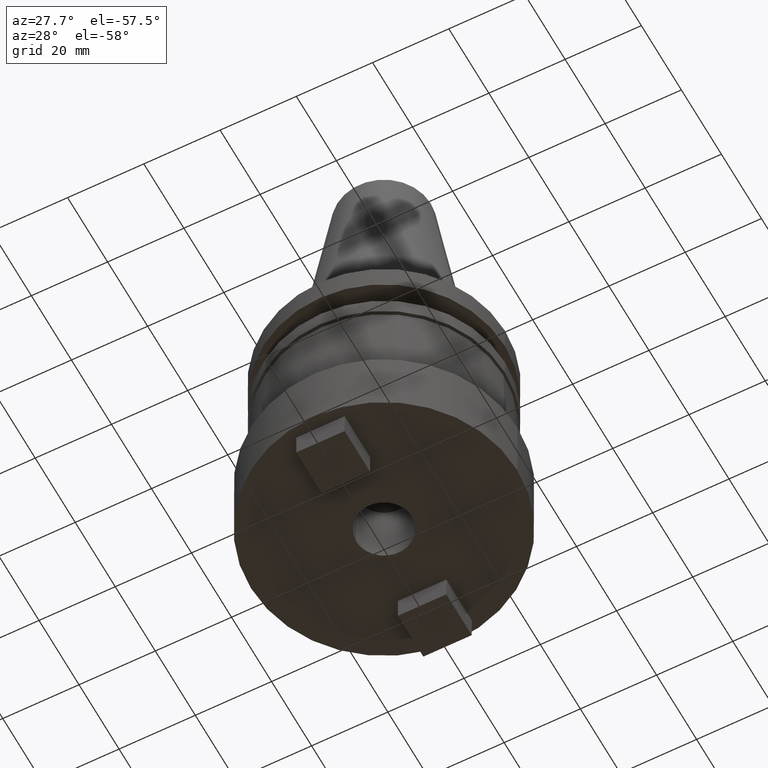
[diagram: clean part render]
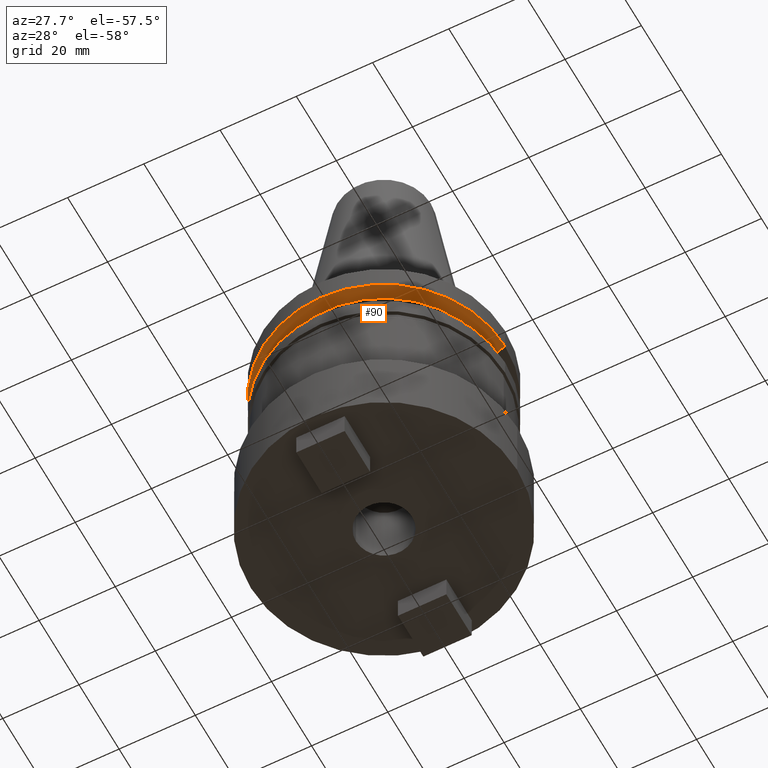
[diagram: same view with one face highlighted and labeled with its STEP entity id]
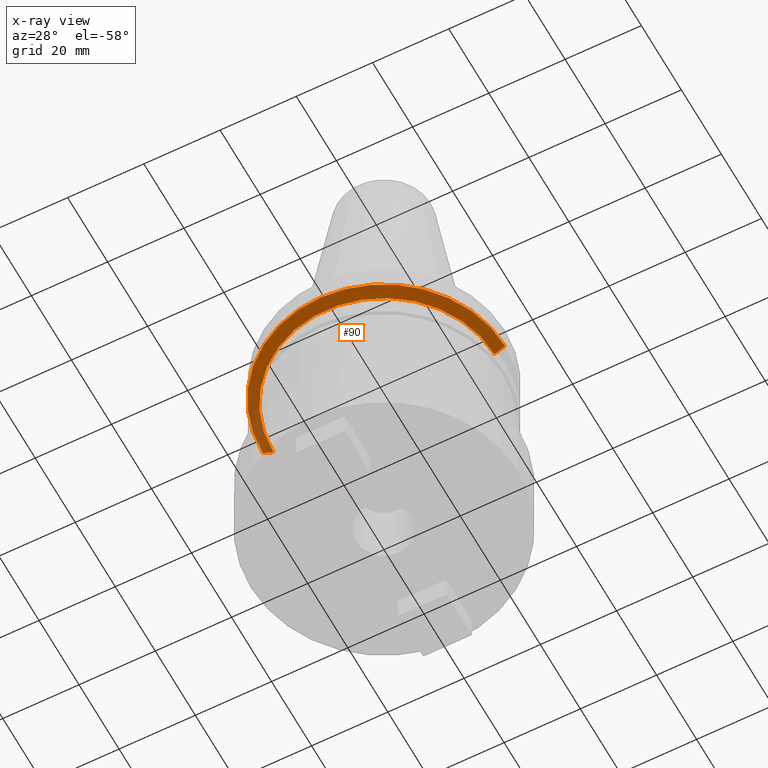
[diagram: x-ray of the same camera — body ghosted, the highlighted face saturated]
A machine part, auxiliary view. The second image highlights one B-rep face of the part: STEP entity #90.
The next image is the same camera in x-ray: the body ghosted, the highlighted face saturated — about 10% of this face is hidden behind the body in this view.
In plain terms, the highlighted conical surface has half-angle 60 deg.
Its self-contained STEP definition (entity closure, byte-faithful):
#44 = CARTESIAN_POINT ( 'NONE',  ( -28.97919780457007732, 3.548928183322474856E-15, -9.205000000000005400 ) ) ;
#51 = DIRECTION ( 'NONE',  ( 1.000000000000000000, 0.000000000000000000, 0.000000000000000000 ) ) ;
#90 = ADVANCED_FACE ( 'NONE', ( #406 ), #148, .T. ) ;
#94 = CARTESIAN_POINT ( 'NONE',  ( 0.000000000000000000, 0.000000000000000000, -9.205000000000005400 ) ) ;
#125 = EDGE_CURVE ( 'NONE', #485, #305, #145, .T. ) ;
#145 = LINE ( 'NONE', #44, #228 ) ;
#148 = CONICAL_SURFACE ( 'NONE', #820, 28.97919780457007732, 1.047197551196598297 ) ;
#155 = VERTEX_POINT ( 'NONE', #347 ) ;
#227 = DIRECTION ( 'NONE',  ( 1.000000000000000000, 0.000000000000000000, 0.000000000000000000 ) ) ;
#228 = VECTOR ( 'NONE', #901, 1000.000000000000000 ) ;
#268 = CARTESIAN_POINT ( 'NONE',  ( 28.97919780457007732, 0.000000000000000000, -9.205000000000005400 ) ) ;
#277 = DIRECTION ( 'NONE',  ( 0.8660254037844389297, 0.000000000000000000, 0.4999999999999995004 ) ) ;
#297 = VERTEX_POINT ( 'NONE', #268 ) ;
#305 = VERTEX_POINT ( 'NONE', #772 ) ;
#340 = EDGE_CURVE ( 'NONE', #485, #297, #410, .T. ) ;
#347 = CARTESIAN_POINT ( 'NONE',  ( 31.75000000000000000, 0.000000000000000000, -7.605276606597335842 ) ) ;
#369 = LINE ( 'NONE', #851, #770 ) ;
#391 = AXIS2_PLACEMENT_3D ( 'NONE', #680, #801, #227 ) ;
#406 = FACE_OUTER_BOUND ( 'NONE', #1183, .T. ) ;
#410 = CIRCLE ( 'NONE', #1100, 28.97919780457007732 ) ;
#485 = VERTEX_POINT ( 'NONE', #613 ) ;
#537 = ORIENTED_EDGE ( 'NONE', *, *, #856, .F. ) ;
#549 = ORIENTED_EDGE ( 'NONE', *, *, #1150, .T. ) ;
#581 = DIRECTION ( 'NONE',  ( 1.000000000000000000, 0.000000000000000000, 0.000000000000000000 ) ) ;
#613 = CARTESIAN_POINT ( 'NONE',  ( -28.97919780457007732, 3.718590885307660666E-15, -9.205000000000005400 ) ) ;
#627 = CARTESIAN_POINT ( 'NONE',  ( 0.000000000000000000, 0.000000000000000000, -9.205000000000005400 ) ) ;
#680 = CARTESIAN_POINT ( 'NONE',  ( 0.000000000000000000, 0.000000000000000000, -7.605276606597335842 ) ) ;
#770 = VECTOR ( 'NONE', #277, 1000.000000000000000 ) ;
#772 = CARTESIAN_POINT ( 'NONE',  ( -31.75000000000000000, 3.888253587292846476E-15, -7.605276606597335842 ) ) ;
#787 = DIRECTION ( 'NONE',  ( -0.000000000000000000, -0.000000000000000000, 1.000000000000000000 ) ) ;
#801 = DIRECTION ( 'NONE',  ( -0.000000000000000000, -0.000000000000000000, 1.000000000000000000 ) ) ;
#805 = ORIENTED_EDGE ( 'NONE', *, *, #125, .F. ) ;
#820 = AXIS2_PLACEMENT_3D ( 'NONE', #627, #787, #51 ) ;
#851 = CARTESIAN_POINT ( 'NONE',  ( 28.97919780457007732, 0.000000000000000000, -9.205000000000005400 ) ) ;
#856 = EDGE_CURVE ( 'NONE', #305, #155, #886, .T. ) ;
#886 = CIRCLE ( 'NONE', #391, 31.75000000000000000 ) ;
#901 = DIRECTION ( 'NONE',  ( -0.8660254037844389297, 1.060575238724907285E-16, 0.4999999999999995004 ) ) ;
#941 = ORIENTED_EDGE ( 'NONE', *, *, #340, .T. ) ;
#1035 = DIRECTION ( 'NONE',  ( -0.000000000000000000, -0.000000000000000000, 1.000000000000000000 ) ) ;
#1100 = AXIS2_PLACEMENT_3D ( 'NONE', #94, #1035, #581 ) ;
#1150 = EDGE_CURVE ( 'NONE', #297, #155, #369, .T. ) ;
#1183 = EDGE_LOOP ( 'NONE', ( #805, #941, #549, #537 ) ) ;